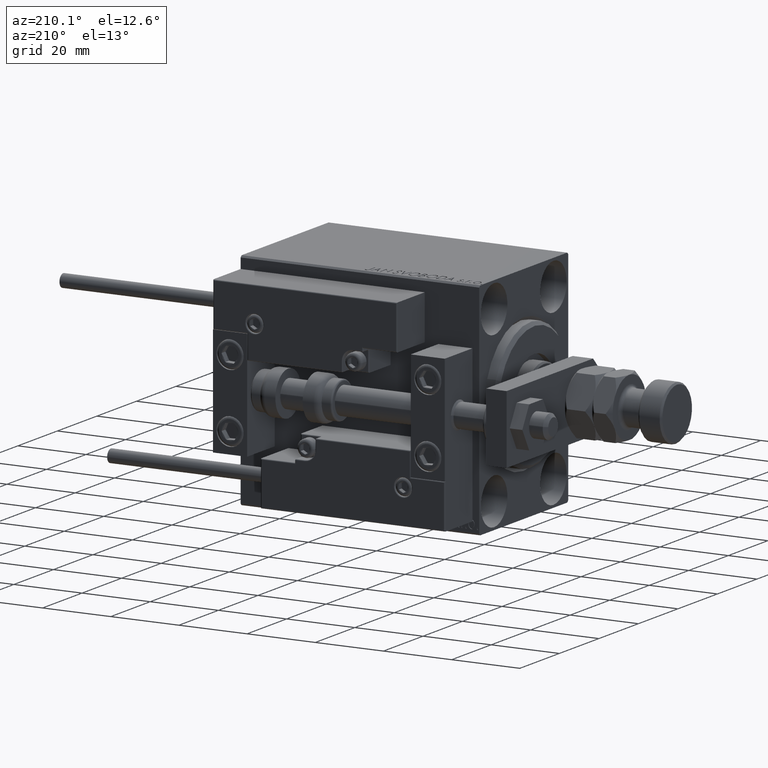
[diagram: clean part render]
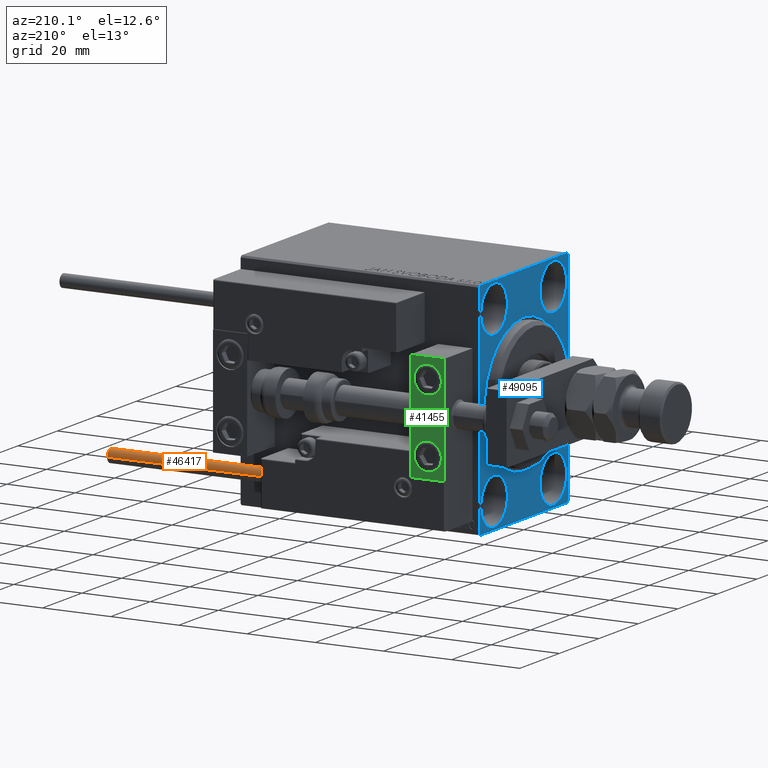
[diagram: same view with three faces highlighted in distinct colors, each labeled with its STEP entity id]
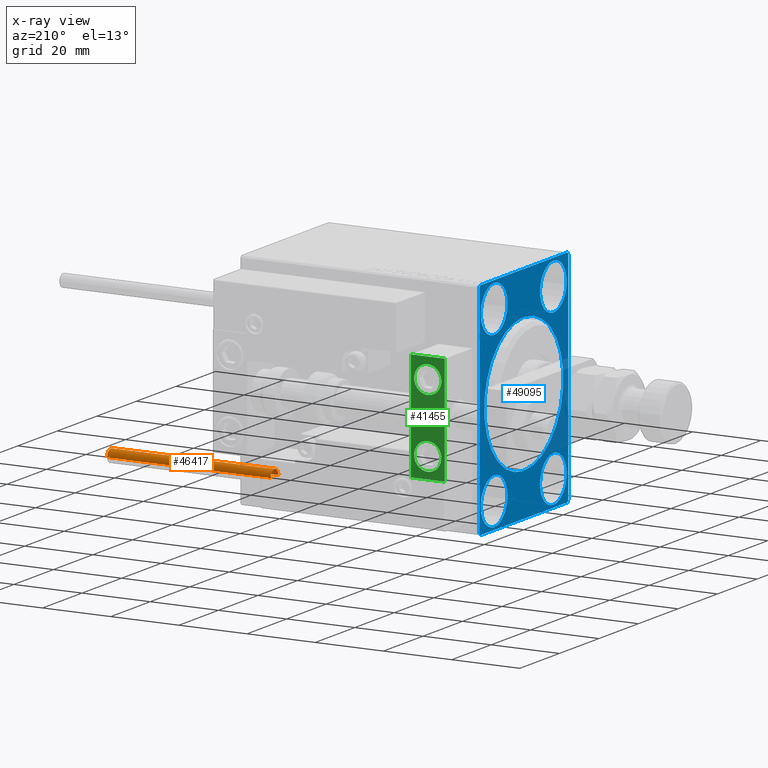
[diagram: x-ray of the same camera — body ghosted, the three highlighted faces saturated]
A machine part, auxiliary view with three faces highlighted in distinct colors.
The next image is the same camera in x-ray (body ghosted, the three faces saturated) — at least one of them is partly hidden behind the body in this view.
Their STEP definitions:

[orange] entity #46417 — the highlighted cylindrical surface (edge-blend (fillet) strip) has radius 1.9 mm, axis along (-1, 0, 0).
#456 = EDGE_CURVE ( 'NONE', #35415, #39469, #8396, .T. ) ;
#2019 = DIRECTION ( 'NONE',  ( 0.000000000000000000, 0.000000000000000000, 1.000000000000000000 ) ) ;
#3258 = EDGE_LOOP ( 'NONE', ( #30517, #19332, #30220, #44919 ) ) ;
#5491 = CARTESIAN_POINT ( 'NONE',  ( 1.899999999999999467, 2.326828918379970872E-16, 0.000000000000000000 ) ) ;
#5953 = CARTESIAN_POINT ( 'NONE',  ( 0.000000000000000000, 0.000000000000000000, 48.00000000000000000 ) ) ;
#6799 = DIRECTION ( 'NONE',  ( 0.000000000000000000, 0.000000000000000000, 1.000000000000000000 ) ) ;
#6890 = DIRECTION ( 'NONE',  ( -0.000000000000000000, -0.000000000000000000, -1.000000000000000000 ) ) ;
#8396 = CIRCLE ( 'NONE', #39376, 1.899999999999999467 ) ;
#10914 = VERTEX_POINT ( 'NONE', #11920 ) ;
#11920 = CARTESIAN_POINT ( 'NONE',  ( -1.899999999999999467, 0.000000000000000000, 48.00000000000000000 ) ) ;
#13027 = DIRECTION ( 'NONE',  ( -0.000000000000000000, -0.000000000000000000, -1.000000000000000000 ) ) ;
#13279 = CARTESIAN_POINT ( 'NONE',  ( 1.899999999999999467, 2.326828918379970872E-16, 48.00000000000000000 ) ) ;
#15141 = CARTESIAN_POINT ( 'NONE',  ( -1.899999999999999467, 0.000000000000000000, 48.00000000000000000 ) ) ;
#17992 = EDGE_CURVE ( 'NONE', #21931, #35415, #49166, .T. ) ;
#18691 = FACE_OUTER_BOUND ( 'NONE', #3258, .T. ) ;
#18944 = CARTESIAN_POINT ( 'NONE',  ( 0.000000000000000000, 0.000000000000000000, 48.00000000000000000 ) ) ;
#19332 = ORIENTED_EDGE ( 'NONE', *, *, #17992, .T. ) ;
#21931 = VERTEX_POINT ( 'NONE', #44705 ) ;
#25124 = EDGE_CURVE ( 'NONE', #10914, #39469, #30133, .T. ) ;
#26409 = AXIS2_PLACEMENT_3D ( 'NONE', #5953, #2019, #44751 ) ;
#30133 = LINE ( 'NONE', #15141, #40860 ) ;
#30220 = ORIENTED_EDGE ( 'NONE', *, *, #456, .T. ) ;
#30517 = ORIENTED_EDGE ( 'NONE', *, *, #33820, .F. ) ;
#33820 = EDGE_CURVE ( 'NONE', #21931, #10914, #41476, .T. ) ;
#34858 = DIRECTION ( 'NONE',  ( 1.000000000000000000, 0.000000000000000000, 0.000000000000000000 ) ) ;
#35415 = VERTEX_POINT ( 'NONE', #5491 ) ;
#39376 = AXIS2_PLACEMENT_3D ( 'NONE', #42703, #6799, #34858 ) ;
#39469 = VERTEX_POINT ( 'NONE', #42332 ) ;
#40860 = VECTOR ( 'NONE', #50006, 1000.000000000000000 ) ;
#41434 = VECTOR ( 'NONE', #13027, 1000.000000000000000 ) ;
#41476 = CIRCLE ( 'NONE', #26409, 1.899999999999999467 ) ;
#42332 = CARTESIAN_POINT ( 'NONE',  ( -1.899999999999999467, 0.000000000000000000, 0.000000000000000000 ) ) ;
#42703 = CARTESIAN_POINT ( 'NONE',  ( 0.000000000000000000, 0.000000000000000000, 0.000000000000000000 ) ) ;
#42800 = CYLINDRICAL_SURFACE ( 'NONE', #50171, 1.899999999999999467 ) ;
#44705 = CARTESIAN_POINT ( 'NONE',  ( 1.899999999999999467, 2.326828918379970872E-16, 48.00000000000000000 ) ) ;
#44751 = DIRECTION ( 'NONE',  ( 1.000000000000000000, 0.000000000000000000, 0.000000000000000000 ) ) ;
#44919 = ORIENTED_EDGE ( 'NONE', *, *, #25124, .F. ) ;
#46417 = ADVANCED_FACE ( 'NONE', ( #18691 ), #42800, .T. ) ;
#49166 = LINE ( 'NONE', #13279, #41434 ) ;
#50006 = DIRECTION ( 'NONE',  ( -0.000000000000000000, -0.000000000000000000, -1.000000000000000000 ) ) ;
#50171 = AXIS2_PLACEMENT_3D ( 'NONE', #18944, #6890, #50906 ) ;
#50906 = DIRECTION ( 'NONE',  ( -1.000000000000000000, 0.000000000000000000, 0.000000000000000000 ) ) ;

[blue] entity #49095 — the highlighted planar face has unit normal (1, 0, 0).
#38 = DIRECTION ( 'NONE',  ( 0.000000000000000000, 0.000000000000000000, 1.000000000000000000 ) ) ;
#301 = CARTESIAN_POINT ( 'NONE',  ( 0.000000000000000000, 14.99999999999999645, -25.00000000000000000 ) ) ;
#432 = VERTEX_POINT ( 'NONE', #3635 ) ;
#625 = EDGE_CURVE ( 'NONE', #27208, #24084, #49400, .T. ) ;
#737 = CARTESIAN_POINT ( 'NONE',  ( 0.000000000000000000, -14.99999999999999645, 25.00000000000000000 ) ) ;
#1097 = ORIENTED_EDGE ( 'NONE', *, *, #26240, .T. ) ;
#1141 = EDGE_CURVE ( 'NONE', #14367, #13006, #3712, .T. ) ;
#1482 = AXIS2_PLACEMENT_3D ( 'NONE', #35688, #51135, #24407 ) ;
#2300 = VECTOR ( 'NONE', #50627, 1000.000000000000114 ) ;
#2570 = VECTOR ( 'NONE', #17865, 1000.000000000000000 ) ;
#2938 = LINE ( 'NONE', #51394, #2300 ) ;
#3635 = CARTESIAN_POINT ( 'NONE',  ( 0.000000000000000000, 0.000000000000000000, 20.00000000000000355 ) ) ;
#3680 = CARTESIAN_POINT ( 'NONE',  ( 0.000000000000000000, 0.000000000000000000, 0.000000000000000000 ) ) ;
#3712 = LINE ( 'NONE', #40132, #10226 ) ;
#4225 = AXIS2_PLACEMENT_3D ( 'NONE', #4946, #4691, #20916 ) ;
#4230 = DIRECTION ( 'NONE',  ( -1.000000000000000000, 0.000000000000000000, 0.000000000000000000 ) ) ;
#4407 = ORIENTED_EDGE ( 'NONE', *, *, #23161, .T. ) ;
#4519 = AXIS2_PLACEMENT_3D ( 'NONE', #19186, #15257, #51148 ) ;
#4691 = DIRECTION ( 'NONE',  ( -1.000000000000000000, 0.000000000000000000, 0.000000000000000000 ) ) ;
#4861 = EDGE_CURVE ( 'NONE', #22295, #13006, #41970, .T. ) ;
#4882 = CIRCLE ( 'NONE', #32540, 6.749999999999999112 ) ;
#4930 = ORIENTED_EDGE ( 'NONE', *, *, #19962, .F. ) ;
#4946 = CARTESIAN_POINT ( 'NONE',  ( 0.000000000000000000, -15.00000000000000355, -25.00000000000000000 ) ) ;
#6127 = CARTESIAN_POINT ( 'NONE',  ( 0.000000000000000000, -15.00000000000000355, -25.00000000000000000 ) ) ;
#6580 = VERTEX_POINT ( 'NONE', #12439 ) ;
#7076 = AXIS2_PLACEMENT_3D ( 'NONE', #301, #4230, #38 ) ;
#7253 = DIRECTION ( 'NONE',  ( 0.000000000000000000, -0.7071067811865376918, -0.7071067811865573427 ) ) ;
#7350 = FACE_BOUND ( 'NONE', #49056, .T. ) ;
#8163 = CARTESIAN_POINT ( 'NONE',  ( 0.000000000000000000, 15.00000000000000355, 18.25000000000000355 ) ) ;
#8661 = DIRECTION ( 'NONE',  ( -1.000000000000000000, 0.000000000000000000, 0.000000000000000000 ) ) ;
#8923 = DIRECTION ( 'NONE',  ( 0.000000000000000000, 0.000000000000000000, 1.000000000000000000 ) ) ;
#9417 = VERTEX_POINT ( 'NONE', #27073 ) ;
#9533 = CARTESIAN_POINT ( 'NONE',  ( 0.000000000000000000, 22.49999999999999289, 31.99999999999999289 ) ) ;
#9790 = ORIENTED_EDGE ( 'NONE', *, *, #625, .F. ) ;
#9813 = ORIENTED_EDGE ( 'NONE', *, *, #26483, .F. ) ;
#9904 = DIRECTION ( 'NONE',  ( -0.000000000000000000, 0.7071067811865425767, -0.7071067811865525687 ) ) ;
#10226 = VECTOR ( 'NONE', #31253, 1000.000000000000000 ) ;
#10528 = DIRECTION ( 'NONE',  ( 0.000000000000000000, 0.000000000000000000, -1.000000000000000000 ) ) ;
#10745 = CARTESIAN_POINT ( 'NONE',  ( 0.000000000000000000, -22.50000000000000711, 31.99999999999999289 ) ) ;
#11292 = EDGE_LOOP ( 'NONE', ( #24090, #45844, #46778, #14756, #18865, #28322, #23231, #49793 ) ) ;
#12099 = CIRCLE ( 'NONE', #7076, 6.749999999999999112 ) ;
#12389 = DIRECTION ( 'NONE',  ( 0.000000000000000000, 0.000000000000000000, 1.000000000000000000 ) ) ;
#12439 = CARTESIAN_POINT ( 'NONE',  ( 0.000000000000000000, 14.99999999999999645, -31.75000000000000000 ) ) ;
#12538 = EDGE_LOOP ( 'NONE', ( #9813, #26075 ) ) ;
#12564 = VERTEX_POINT ( 'NONE', #14783 ) ;
#13006 = VERTEX_POINT ( 'NONE', #36642 ) ;
#13125 = ORIENTED_EDGE ( 'NONE', *, *, #14578, .F. ) ;
#13173 = DIRECTION ( 'NONE',  ( 0.000000000000000000, 0.000000000000000000, 1.000000000000000000 ) ) ;
#13187 = VECTOR ( 'NONE', #26800, 1000.000000000000000 ) ;
#14367 = VERTEX_POINT ( 'NONE', #24566 ) ;
#14578 = EDGE_CURVE ( 'NONE', #26102, #12564, #15379, .T. ) ;
#14756 = ORIENTED_EDGE ( 'NONE', *, *, #21600, .T. ) ;
#14783 = CARTESIAN_POINT ( 'NONE',  ( 0.000000000000000000, -14.99999999999999645, 31.75000000000000000 ) ) ;
#15257 = DIRECTION ( 'NONE',  ( -1.000000000000000000, 0.000000000000000000, 0.000000000000000000 ) ) ;
#15379 = CIRCLE ( 'NONE', #39780, 6.749999999999999112 ) ;
#15495 = VECTOR ( 'NONE', #47524, 1000.000000000000000 ) ;
#15502 = CARTESIAN_POINT ( 'NONE',  ( 0.000000000000000000, 22.49999999999999289, 32.50000000000000000 ) ) ;
#15621 = CARTESIAN_POINT ( 'NONE',  ( 0.000000000000000000, 0.000000000000000000, 0.000000000000000000 ) ) ;
#15732 = DIRECTION ( 'NONE',  ( 1.000000000000000000, 0.000000000000000000, 0.000000000000000000 ) ) ;
#15755 = ORIENTED_EDGE ( 'NONE', *, *, #16893, .F. ) ;
#16665 = CIRCLE ( 'NONE', #30088, 20.00000000000000355 ) ;
#16893 = EDGE_CURVE ( 'NONE', #41325, #6580, #12099, .T. ) ;
#17297 = CARTESIAN_POINT ( 'NONE',  ( 0.000000000000000000, 14.99999999999999645, -18.25000000000000355 ) ) ;
#17448 = CIRCLE ( 'NONE', #23284, 6.749999999999999112 ) ;
#17538 = CARTESIAN_POINT ( 'NONE',  ( 0.000000000000000000, -21.99999999999999289, 32.49999999999999289 ) ) ;
#17763 = CARTESIAN_POINT ( 'NONE',  ( 0.000000000000000000, 21.99999999999999289, 32.50000000000000000 ) ) ;
#17864 = CARTESIAN_POINT ( 'NONE',  ( 0.000000000000000000, -22.50000000000000711, -32.50000000000000711 ) ) ;
#17865 = DIRECTION ( 'NONE',  ( 0.000000000000000000, 0.000000000000000000, -1.000000000000000000 ) ) ;
#18616 = EDGE_LOOP ( 'NONE', ( #4407, #1097 ) ) ;
#18831 = VERTEX_POINT ( 'NONE', #17538 ) ;
#18865 = ORIENTED_EDGE ( 'NONE', *, *, #33194, .F. ) ;
#19186 = CARTESIAN_POINT ( 'NONE',  ( 0.000000000000000000, 14.99999999999999645, -25.00000000000000000 ) ) ;
#19962 = EDGE_CURVE ( 'NONE', #12564, #26102, #43186, .T. ) ;
#20600 = DIRECTION ( 'NONE',  ( 1.000000000000000000, 0.000000000000000000, 0.000000000000000000 ) ) ;
#20916 = DIRECTION ( 'NONE',  ( 0.000000000000000000, 0.000000000000000000, 1.000000000000000000 ) ) ;
#21527 = LINE ( 'NONE', #17864, #44448 ) ;
#21600 = EDGE_CURVE ( 'NONE', #40141, #29861, #25113, .T. ) ;
#21709 = VERTEX_POINT ( 'NONE', #31372 ) ;
#22283 = AXIS2_PLACEMENT_3D ( 'NONE', #737, #40559, #32714 ) ;
#22295 = VERTEX_POINT ( 'NONE', #10745 ) ;
#22578 = PLANE ( 'NONE',  #34371 ) ;
#23161 = EDGE_CURVE ( 'NONE', #432, #46503, #39960, .T. ) ;
#23231 = ORIENTED_EDGE ( 'NONE', *, *, #51209, .F. ) ;
#23284 = AXIS2_PLACEMENT_3D ( 'NONE', #25490, #44880, #13173 ) ;
#23346 = FACE_BOUND ( 'NONE', #12538, .T. ) ;
#23590 = EDGE_CURVE ( 'NONE', #48857, #9417, #26937, .T. ) ;
#24084 = VERTEX_POINT ( 'NONE', #39549 ) ;
#24090 = ORIENTED_EDGE ( 'NONE', *, *, #4861, .F. ) ;
#24407 = DIRECTION ( 'NONE',  ( 0.000000000000000000, 0.000000000000000000, -1.000000000000000000 ) ) ;
#24566 = CARTESIAN_POINT ( 'NONE',  ( 0.000000000000000000, -22.00000000000002132, -32.50000000000000711 ) ) ;
#24846 = EDGE_CURVE ( 'NONE', #24084, #27208, #4882, .T. ) ;
#25113 = LINE ( 'NONE', #17763, #27372 ) ;
#25116 = EDGE_LOOP ( 'NONE', ( #15755, #46624 ) ) ;
#25490 = CARTESIAN_POINT ( 'NONE',  ( 0.000000000000000000, 15.00000000000000355, 25.00000000000000000 ) ) ;
#26075 = ORIENTED_EDGE ( 'NONE', *, *, #41033, .F. ) ;
#26102 = VERTEX_POINT ( 'NONE', #38458 ) ;
#26240 = EDGE_CURVE ( 'NONE', #46503, #432, #16665, .T. ) ;
#26483 = EDGE_CURVE ( 'NONE', #21709, #43190, #45128, .T. ) ;
#26735 = AXIS2_PLACEMENT_3D ( 'NONE', #36726, #8661, #8923 ) ;
#26800 = DIRECTION ( 'NONE',  ( 0.000000000000000000, -1.000000000000000000, -1.541976423090495387E-16 ) ) ;
#26937 = LINE ( 'NONE', #51780, #37511 ) ;
#27073 = CARTESIAN_POINT ( 'NONE',  ( 0.000000000000000000, 22.00000000000001421, -32.50000000000000711 ) ) ;
#27208 = VERTEX_POINT ( 'NONE', #29533 ) ;
#27288 = FACE_BOUND ( 'NONE', #25116, .T. ) ;
#27372 = VECTOR ( 'NONE', #9904, 999.9999999999998863 ) ;
#27607 = DIRECTION ( 'NONE',  ( -1.000000000000000000, 0.000000000000000000, 0.000000000000000000 ) ) ;
#27829 = LINE ( 'NONE', #15502, #13187 ) ;
#27890 = CARTESIAN_POINT ( 'NONE',  ( 0.000000000000000000, 22.50000000000000000, -32.50000000000000711 ) ) ;
#28322 = ORIENTED_EDGE ( 'NONE', *, *, #23590, .T. ) ;
#29533 = CARTESIAN_POINT ( 'NONE',  ( 0.000000000000000000, -15.00000000000000355, -18.25000000000000355 ) ) ;
#29861 = VERTEX_POINT ( 'NONE', #9533 ) ;
#30085 = EDGE_CURVE ( 'NONE', #6580, #41325, #30465, .T. ) ;
#30088 = AXIS2_PLACEMENT_3D ( 'NONE', #15621, #20600, #47583 ) ;
#30465 = CIRCLE ( 'NONE', #4519, 6.749999999999999112 ) ;
#30723 = FACE_BOUND ( 'NONE', #18616, .T. ) ;
#31253 = DIRECTION ( 'NONE',  ( -0.000000000000000000, -0.7071067811865378028, 0.7071067811865573427 ) ) ;
#31352 = CARTESIAN_POINT ( 'NONE',  ( 0.000000000000000000, 22.50000000000000000, -32.00000000000002132 ) ) ;
#31372 = CARTESIAN_POINT ( 'NONE',  ( 0.000000000000000000, 15.00000000000000355, 31.75000000000000000 ) ) ;
#32514 = ORIENTED_EDGE ( 'NONE', *, *, #24846, .F. ) ;
#32540 = AXIS2_PLACEMENT_3D ( 'NONE', #6127, #45964, #38111 ) ;
#32714 = DIRECTION ( 'NONE',  ( 0.000000000000000000, 0.000000000000000000, 1.000000000000000000 ) ) ;
#33194 = EDGE_CURVE ( 'NONE', #48857, #29861, #51708, .T. ) ;
#34056 = EDGE_LOOP ( 'NONE', ( #4930, #13125 ) ) ;
#34371 = AXIS2_PLACEMENT_3D ( 'NONE', #3680, #15732, #10528 ) ;
#34446 = CARTESIAN_POINT ( 'NONE',  ( 0.000000000000000000, 2.449293598294706907E-15, -20.00000000000000355 ) ) ;
#35688 = CARTESIAN_POINT ( 'NONE',  ( 0.000000000000000000, 0.000000000000000000, 0.000000000000000000 ) ) ;
#36642 = CARTESIAN_POINT ( 'NONE',  ( 0.000000000000000000, -22.50000000000000711, -32.00000000000000711 ) ) ;
#36726 = CARTESIAN_POINT ( 'NONE',  ( 0.000000000000000000, 15.00000000000000355, 25.00000000000000000 ) ) ;
#37004 = DIRECTION ( 'NONE',  ( 0.000000000000000000, 1.000000000000000000, 0.000000000000000000 ) ) ;
#37511 = VECTOR ( 'NONE', #7253, 1000.000000000000114 ) ;
#38053 = CARTESIAN_POINT ( 'NONE',  ( 0.000000000000000000, -22.50000000000000711, 32.49999999999999289 ) ) ;
#38111 = DIRECTION ( 'NONE',  ( 0.000000000000000000, 0.000000000000000000, 1.000000000000000000 ) ) ;
#38458 = CARTESIAN_POINT ( 'NONE',  ( 0.000000000000000000, -14.99999999999999645, 18.25000000000000355 ) ) ;
#38916 = EDGE_CURVE ( 'NONE', #22295, #18831, #2938, .T. ) ;
#38944 = EDGE_CURVE ( 'NONE', #40141, #18831, #27829, .T. ) ;
#39077 = FACE_OUTER_BOUND ( 'NONE', #11292, .T. ) ;
#39549 = CARTESIAN_POINT ( 'NONE',  ( 0.000000000000000000, -15.00000000000000355, -31.75000000000000000 ) ) ;
#39780 = AXIS2_PLACEMENT_3D ( 'NONE', #40429, #27607, #12389 ) ;
#39960 = CIRCLE ( 'NONE', #1482, 20.00000000000000355 ) ;
#40132 = CARTESIAN_POINT ( 'NONE',  ( 0.000000000000000000, -22.00000000000002132, -32.50000000000000711 ) ) ;
#40141 = VERTEX_POINT ( 'NONE', #45909 ) ;
#40429 = CARTESIAN_POINT ( 'NONE',  ( 0.000000000000000000, -14.99999999999999645, 25.00000000000000000 ) ) ;
#40559 = DIRECTION ( 'NONE',  ( -1.000000000000000000, 0.000000000000000000, 0.000000000000000000 ) ) ;
#41033 = EDGE_CURVE ( 'NONE', #43190, #21709, #17448, .T. ) ;
#41325 = VERTEX_POINT ( 'NONE', #17297 ) ;
#41970 = LINE ( 'NONE', #38053, #2570 ) ;
#43186 = CIRCLE ( 'NONE', #22283, 6.749999999999999112 ) ;
#43190 = VERTEX_POINT ( 'NONE', #8163 ) ;
#43260 = FACE_BOUND ( 'NONE', #34056, .T. ) ;
#44448 = VECTOR ( 'NONE', #37004, 1000.000000000000000 ) ;
#44880 = DIRECTION ( 'NONE',  ( -1.000000000000000000, 0.000000000000000000, 0.000000000000000000 ) ) ;
#45128 = CIRCLE ( 'NONE', #26735, 6.749999999999999112 ) ;
#45844 = ORIENTED_EDGE ( 'NONE', *, *, #38916, .T. ) ;
#45909 = CARTESIAN_POINT ( 'NONE',  ( 0.000000000000000000, 21.99999999999999289, 32.50000000000000000 ) ) ;
#45964 = DIRECTION ( 'NONE',  ( -1.000000000000000000, 0.000000000000000000, 0.000000000000000000 ) ) ;
#46503 = VERTEX_POINT ( 'NONE', #34446 ) ;
#46624 = ORIENTED_EDGE ( 'NONE', *, *, #30085, .F. ) ;
#46778 = ORIENTED_EDGE ( 'NONE', *, *, #38944, .F. ) ;
#47524 = DIRECTION ( 'NONE',  ( 0.000000000000000000, -1.067522139062650425E-16, 1.000000000000000000 ) ) ;
#47583 = DIRECTION ( 'NONE',  ( 0.000000000000000000, 0.000000000000000000, -1.000000000000000000 ) ) ;
#48857 = VERTEX_POINT ( 'NONE', #31352 ) ;
#49056 = EDGE_LOOP ( 'NONE', ( #9790, #32514 ) ) ;
#49095 = ADVANCED_FACE ( 'NONE', ( #30723, #27288, #43260, #23346, #7350, #39077 ), #22578, .F. ) ;
#49400 = CIRCLE ( 'NONE', #4225, 6.749999999999999112 ) ;
#49793 = ORIENTED_EDGE ( 'NONE', *, *, #1141, .T. ) ;
#50627 = DIRECTION ( 'NONE',  ( -0.000000000000000000, 0.7071067811865474617, 0.7071067811865474617 ) ) ;
#51135 = DIRECTION ( 'NONE',  ( 1.000000000000000000, 0.000000000000000000, 0.000000000000000000 ) ) ;
#51148 = DIRECTION ( 'NONE',  ( 0.000000000000000000, 0.000000000000000000, 1.000000000000000000 ) ) ;
#51209 = EDGE_CURVE ( 'NONE', #14367, #9417, #21527, .T. ) ;
#51394 = CARTESIAN_POINT ( 'NONE',  ( 0.000000000000000000, -22.50000000000000711, 31.99999999999999289 ) ) ;
#51708 = LINE ( 'NONE', #27890, #15495 ) ;
#51780 = CARTESIAN_POINT ( 'NONE',  ( 0.000000000000000000, 22.50000000000000000, -32.00000000000002132 ) ) ;

[green] entity #41455 — the highlighted planar face has unit normal (-0, 1, -0).
#1014 = CARTESIAN_POINT ( 'NONE',  ( 5.000000000000000888, 7.000000000000000888, 10.00000000000000178 ) ) ;
#1299 = VERTEX_POINT ( 'NONE', #31769 ) ;
#1444 = AXIS2_PLACEMENT_3D ( 'NONE', #35869, #39524, #11743 ) ;
#3621 = FACE_OUTER_BOUND ( 'NONE', #25531, .T. ) ;
#3651 = VERTEX_POINT ( 'NONE', #49880 ) ;
#4794 = DIRECTION ( 'NONE',  ( -1.000000000000000000, -0.000000000000000000, -0.000000000000000000 ) ) ;
#6351 = AXIS2_PLACEMENT_3D ( 'NONE', #22110, #26314, #38360 ) ;
#6740 = ORIENTED_EDGE ( 'NONE', *, *, #30147, .F. ) ;
#8165 = LINE ( 'NONE', #51412, #12023 ) ;
#8978 = VECTOR ( 'NONE', #48360, 1000.000000000000000 ) ;
#10255 = CARTESIAN_POINT ( 'NONE',  ( 5.000000000000000888, 7.000000000000000888, 14.00000000000000178 ) ) ;
#10682 = ORIENTED_EDGE ( 'NONE', *, *, #41949, .T. ) ;
#11743 = DIRECTION ( 'NONE',  ( 0.000000000000000000, -0.000000000000000000, 1.000000000000000000 ) ) ;
#11801 = CARTESIAN_POINT ( 'NONE',  ( 5.000000000000001776, 7.000000000000000888, 6.000000000000000888 ) ) ;
#12023 = VECTOR ( 'NONE', #40143, 1000.000000000000000 ) ;
#12031 = ORIENTED_EDGE ( 'NONE', *, *, #15499, .T. ) ;
#12636 = CIRCLE ( 'NONE', #33573, 4.000000000000000000 ) ;
#13506 = LINE ( 'NONE', #20840, #8978 ) ;
#13521 = ORIENTED_EDGE ( 'NONE', *, *, #19372, .T. ) ;
#15499 = EDGE_CURVE ( 'NONE', #36213, #18727, #33950, .T. ) ;
#16372 = VERTEX_POINT ( 'NONE', #35234 ) ;
#16458 = FACE_BOUND ( 'NONE', #29188, .T. ) ;
#18727 = VERTEX_POINT ( 'NONE', #10255 ) ;
#19372 = EDGE_CURVE ( 'NONE', #3651, #1299, #37803, .T. ) ;
#20840 = CARTESIAN_POINT ( 'NONE',  ( 10.00000000000000000, 7.000000000000000000, 15.99999999999999289 ) ) ;
#21583 = EDGE_LOOP ( 'NONE', ( #45907, #12031 ) ) ;
#22110 = CARTESIAN_POINT ( 'NONE',  ( 5.000000000000000888, 6.999999999999999112, -10.00000000000000178 ) ) ;
#24051 = VERTEX_POINT ( 'NONE', #46907 ) ;
#24346 = AXIS2_PLACEMENT_3D ( 'NONE', #49673, #41822, #29803 ) ;
#25531 = EDGE_LOOP ( 'NONE', ( #6740, #44878, #10682, #13521 ) ) ;
#26004 = CARTESIAN_POINT ( 'NONE',  ( 10.00000000000000000, 7.000000000000000000, -16.00000000000000711 ) ) ;
#26027 = VECTOR ( 'NONE', #45926, 1000.000000000000000 ) ;
#26314 = DIRECTION ( 'NONE',  ( 0.000000000000000000, 1.000000000000000000, -6.065466699219605527E-17 ) ) ;
#26534 = LINE ( 'NONE', #33896, #26027 ) ;
#27980 = EDGE_CURVE ( 'NONE', #24051, #51545, #47780, .T. ) ;
#28406 = EDGE_CURVE ( 'NONE', #18727, #36213, #12636, .T. ) ;
#29188 = EDGE_LOOP ( 'NONE', ( #40950, #46679 ) ) ;
#29803 = DIRECTION ( 'NONE',  ( 0.000000000000000000, 0.000000000000000000, 1.000000000000000000 ) ) ;
#30147 = EDGE_CURVE ( 'NONE', #39326, #1299, #8165, .T. ) ;
#31428 = PLANE ( 'NONE',  #1444 ) ;
#31686 = FACE_BOUND ( 'NONE', #21583, .T. ) ;
#31769 = CARTESIAN_POINT ( 'NONE',  ( 0.000000000000000000, 7.000000000000000000, -16.00000000000000711 ) ) ;
#32011 = DIRECTION ( 'NONE',  ( 1.848892746611746419E-32, -1.000000000000000000, 6.616381192988677562E-17 ) ) ;
#32531 = DIRECTION ( 'NONE',  ( 0.000000000000000000, 0.000000000000000000, 1.000000000000000000 ) ) ;
#33259 = DIRECTION ( 'NONE',  ( 0.000000000000000000, 0.000000000000000000, 1.000000000000000000 ) ) ;
#33513 = DIRECTION ( 'NONE',  ( 1.848892746611746419E-32, -1.000000000000000000, 6.616381192988677562E-17 ) ) ;
#33573 = AXIS2_PLACEMENT_3D ( 'NONE', #1014, #33513, #33259 ) ;
#33896 = CARTESIAN_POINT ( 'NONE',  ( 10.00000000000000000, 7.000000000000000000, 15.99999999999999289 ) ) ;
#33950 = CIRCLE ( 'NONE', #40610, 4.000000000000000000 ) ;
#34143 = EDGE_CURVE ( 'NONE', #51545, #24051, #38969, .T. ) ;
#34860 = VECTOR ( 'NONE', #4794, 1000.000000000000000 ) ;
#35234 = CARTESIAN_POINT ( 'NONE',  ( 10.00000000000000000, 7.000000000000000000, 15.99999999999999289 ) ) ;
#35421 = CARTESIAN_POINT ( 'NONE',  ( 5.000000000000000888, 7.000000000000000888, 10.00000000000000178 ) ) ;
#35869 = CARTESIAN_POINT ( 'NONE',  ( 10.00000000000000000, 7.000000000000000000, 15.99999999999999289 ) ) ;
#36213 = VERTEX_POINT ( 'NONE', #11801 ) ;
#37803 = LINE ( 'NONE', #26004, #34860 ) ;
#38360 = DIRECTION ( 'NONE',  ( 0.000000000000000000, 0.000000000000000000, 1.000000000000000000 ) ) ;
#38969 = CIRCLE ( 'NONE', #6351, 4.000000000000000888 ) ;
#39326 = VERTEX_POINT ( 'NONE', #40064 ) ;
#39524 = DIRECTION ( 'NONE',  ( -0.000000000000000000, 1.000000000000000000, 0.000000000000000000 ) ) ;
#40064 = CARTESIAN_POINT ( 'NONE',  ( 0.000000000000000000, 7.000000000000000000, 15.99999999999999289 ) ) ;
#40143 = DIRECTION ( 'NONE',  ( 0.000000000000000000, 0.000000000000000000, -1.000000000000000000 ) ) ;
#40610 = AXIS2_PLACEMENT_3D ( 'NONE', #35421, #32011, #32531 ) ;
#40950 = ORIENTED_EDGE ( 'NONE', *, *, #27980, .F. ) ;
#41455 = ADVANCED_FACE ( 'NONE', ( #3621, #16458, #31686 ), #31428, .T. ) ;
#41822 = DIRECTION ( 'NONE',  ( 0.000000000000000000, 1.000000000000000000, -6.065466699219605527E-17 ) ) ;
#41949 = EDGE_CURVE ( 'NONE', #16372, #3651, #13506, .T. ) ;
#44566 = CARTESIAN_POINT ( 'NONE',  ( 5.000000000000001776, 6.999999999999999112, -14.00000000000000178 ) ) ;
#44878 = ORIENTED_EDGE ( 'NONE', *, *, #50449, .F. ) ;
#45907 = ORIENTED_EDGE ( 'NONE', *, *, #28406, .T. ) ;
#45926 = DIRECTION ( 'NONE',  ( -1.000000000000000000, -0.000000000000000000, -0.000000000000000000 ) ) ;
#46679 = ORIENTED_EDGE ( 'NONE', *, *, #34143, .F. ) ;
#46907 = CARTESIAN_POINT ( 'NONE',  ( 5.000000000000000888, 6.999999999999999112, -6.000000000000000888 ) ) ;
#47780 = CIRCLE ( 'NONE', #24346, 4.000000000000000888 ) ;
#48360 = DIRECTION ( 'NONE',  ( 0.000000000000000000, 0.000000000000000000, -1.000000000000000000 ) ) ;
#49673 = CARTESIAN_POINT ( 'NONE',  ( 5.000000000000000888, 6.999999999999999112, -10.00000000000000178 ) ) ;
#49880 = CARTESIAN_POINT ( 'NONE',  ( 10.00000000000000000, 7.000000000000000000, -16.00000000000000711 ) ) ;
#50449 = EDGE_CURVE ( 'NONE', #16372, #39326, #26534, .T. ) ;
#51412 = CARTESIAN_POINT ( 'NONE',  ( 0.000000000000000000, 7.000000000000000000, 15.99999999999999289 ) ) ;
#51545 = VERTEX_POINT ( 'NONE', #44566 ) ;